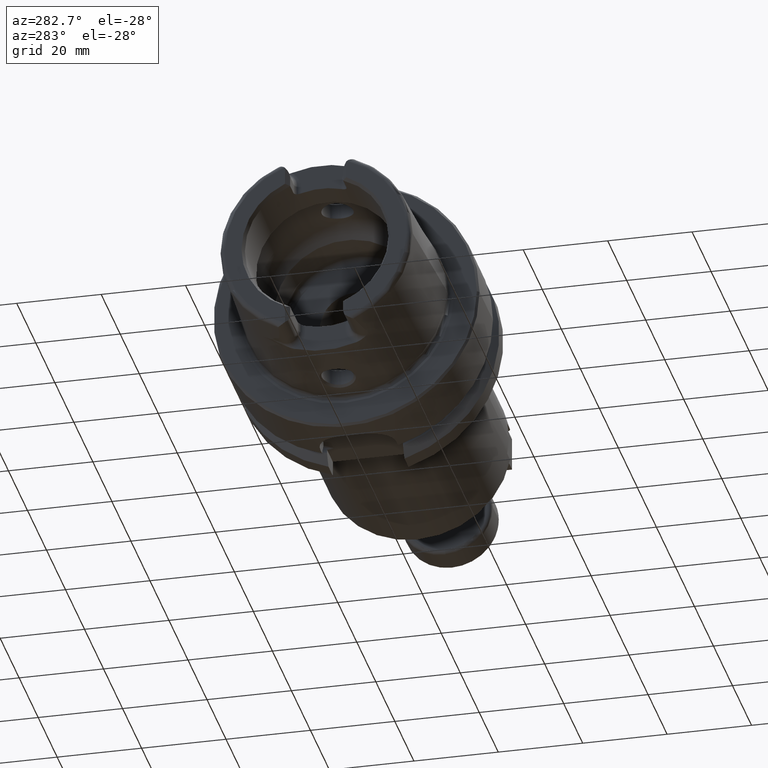
[diagram: clean part render]
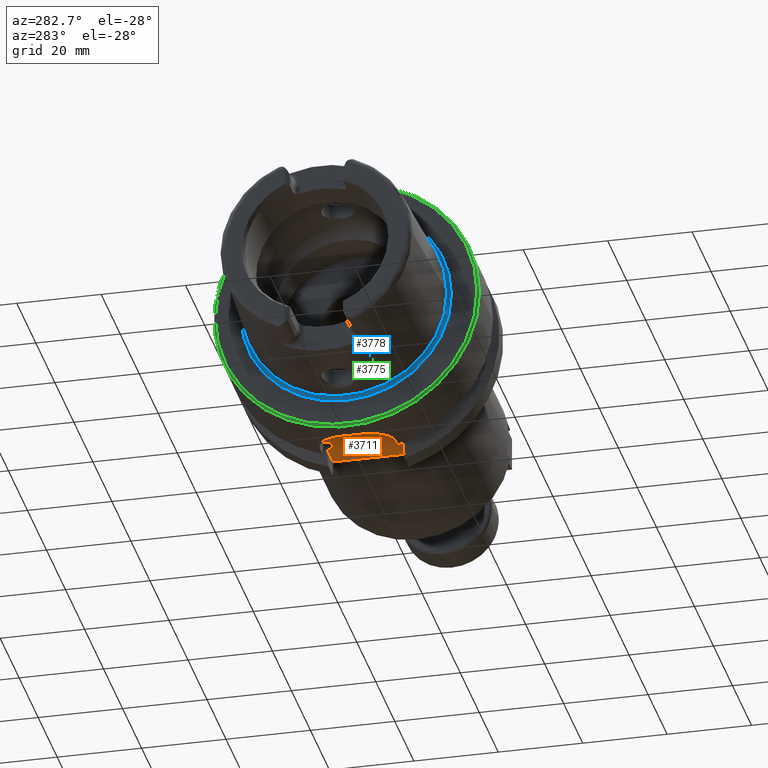
[diagram: same view with three faces highlighted in distinct colors, each labeled with its STEP entity id]
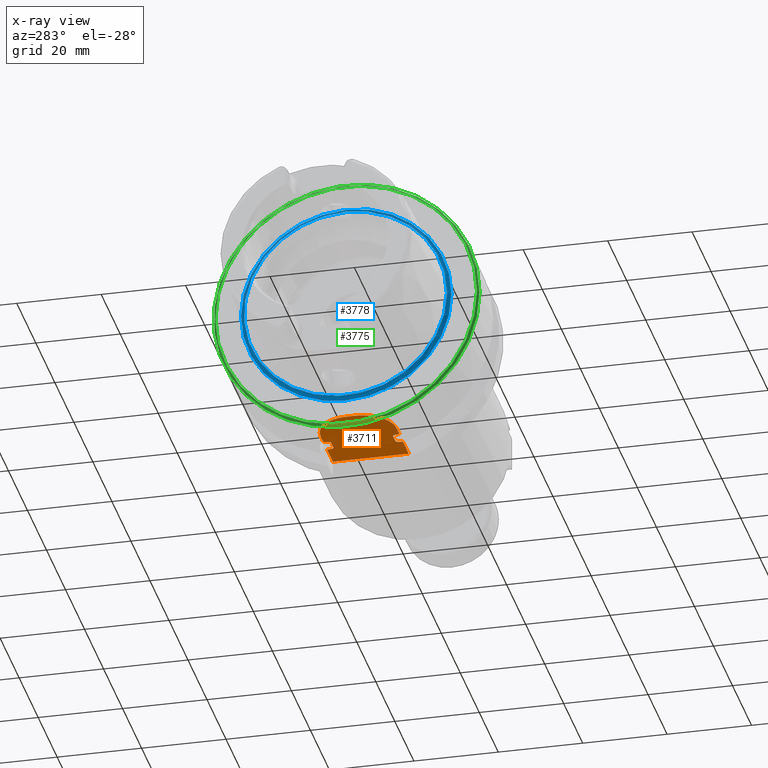
[diagram: x-ray of the same camera — body ghosted, the three highlighted faces saturated]
A machine part, auxiliary view with three faces highlighted in distinct colors.
The next image is the same camera in x-ray (body ghosted, the three faces saturated) — at least one of them is partly hidden behind the body in this view.
Their STEP definitions:

[orange] entity #3711 — the highlighted planar face has unit normal (0, 0, 1).
#659=B_SPLINE_CURVE_WITH_KNOTS('',3,(#6809,#6810,#6811,#6812,#6813,#6814,
#6815,#6816,#6817,#6818),.UNSPECIFIED.,.F.,.F.,(4,2,2,2,4),(0.15835931245442,
0.289228035148658,0.316691561230897,0.323545183976989,0.328785692776271),
 .UNSPECIFIED.);
#660=B_SPLINE_CURVE_WITH_KNOTS('',3,(#6830,#6831,#6832,#6833,#6834,#6835,
#6836,#6837,#6838,#6839),.UNSPECIFIED.,.F.,.F.,(4,2,2,2,4),(0.328785692776271,
0.334026201575553,0.340879824321645,0.368343350403884,0.499212073098123),
 .UNSPECIFIED.);
#661=B_SPLINE_CURVE_WITH_KNOTS('',3,(#6842,#6843,#6844,#6845,#6846,#6847,
#6848,#6849,#6850,#6851),.UNSPECIFIED.,.F.,.F.,(4,2,2,2,4),(0.15835931245442,
0.289228035148658,0.316691561230897,0.323545183976988,0.32878569277627),
 .UNSPECIFIED.);
#662=B_SPLINE_CURVE_WITH_KNOTS('',3,(#6853,#6854,#6855,#6856,#6857,#6858,
#6859,#6860,#6861,#6862),.UNSPECIFIED.,.F.,.F.,(4,2,2,2,4),(0.32878569277627,
0.334026201575552,0.340879824321644,0.368343350403882,0.49921207309812),
 .UNSPECIFIED.);
#732=PLANE('',#4169);
#908=FACE_OUTER_BOUND('',#1109,.T.);
#1109=EDGE_LOOP('',(#3048,#3049,#3050,#3051,#3052,#3053,#3054,#3055,#3056,
#3057,#3058,#3059,#3060,#3061));
#1272=LINE('',#5836,#1466);
#1327=LINE('',#6763,#1521);
#1329=LINE('',#6793,#1523);
#1332=LINE('',#6820,#1526);
#1333=LINE('',#6824,#1527);
#1334=LINE('',#6828,#1528);
#1335=LINE('',#6841,#1529);
#1336=LINE('',#6863,#1530);
#1466=VECTOR('',#4657,10.);
#1521=VECTOR('',#4910,10.);
#1523=VECTOR('',#4914,10.);
#1526=VECTOR('',#4919,10.);
#1527=VECTOR('',#4922,10.);
#1528=VECTOR('',#4925,10.);
#1529=VECTOR('',#4926,10.);
#1530=VECTOR('',#4927,10.);
#1714=CIRCLE('',#4170,8.);
#1715=CIRCLE('',#4171,8.);
#1910=VERTEX_POINT('',#5833);
#1911=VERTEX_POINT('',#5835);
#2026=VERTEX_POINT('',#6758);
#2030=VERTEX_POINT('',#6792);
#2034=VERTEX_POINT('',#6807);
#2035=VERTEX_POINT('',#6808);
#2036=VERTEX_POINT('',#6819);
#2037=VERTEX_POINT('',#6821);
#2038=VERTEX_POINT('',#6823);
#2039=VERTEX_POINT('',#6825);
#2040=VERTEX_POINT('',#6827);
#2041=VERTEX_POINT('',#6829);
#2042=VERTEX_POINT('',#6840);
#2043=VERTEX_POINT('',#6852);
#2248=EDGE_CURVE('',#1910,#1911,#1272,.T.);
#2404=EDGE_CURVE('',#2026,#1910,#1327,.T.);
#2409=EDGE_CURVE('',#1911,#2030,#1329,.T.);
#2414=EDGE_CURVE('',#2034,#2035,#659,.T.);
#2415=EDGE_CURVE('',#2036,#2034,#1332,.T.);
#2416=EDGE_CURVE('',#2037,#2036,#1714,.T.);
#2417=EDGE_CURVE('',#2038,#2037,#1333,.T.);
#2418=EDGE_CURVE('',#2039,#2038,#1715,.T.);
#2419=EDGE_CURVE('',#2040,#2039,#1334,.T.);
#2420=EDGE_CURVE('',#2041,#2040,#660,.T.);
#2421=EDGE_CURVE('',#2042,#2041,#1335,.T.);
#2422=EDGE_CURVE('',#2030,#2042,#661,.T.);
#2423=EDGE_CURVE('',#2043,#2026,#662,.T.);
#2424=EDGE_CURVE('',#2035,#2043,#1336,.T.);
#3048=ORIENTED_EDGE('',*,*,#2414,.F.);
#3049=ORIENTED_EDGE('',*,*,#2415,.F.);
#3050=ORIENTED_EDGE('',*,*,#2416,.F.);
#3051=ORIENTED_EDGE('',*,*,#2417,.F.);
#3052=ORIENTED_EDGE('',*,*,#2418,.F.);
#3053=ORIENTED_EDGE('',*,*,#2419,.F.);
#3054=ORIENTED_EDGE('',*,*,#2420,.F.);
#3055=ORIENTED_EDGE('',*,*,#2421,.F.);
#3056=ORIENTED_EDGE('',*,*,#2422,.F.);
#3057=ORIENTED_EDGE('',*,*,#2409,.F.);
#3058=ORIENTED_EDGE('',*,*,#2248,.F.);
#3059=ORIENTED_EDGE('',*,*,#2404,.F.);
#3060=ORIENTED_EDGE('',*,*,#2423,.F.);
#3061=ORIENTED_EDGE('',*,*,#2424,.F.);
#3711=ADVANCED_FACE('',(#908),#732,.F.);
#4169=AXIS2_PLACEMENT_3D('',#6806,#4917,#4918);
#4170=AXIS2_PLACEMENT_3D('',#6822,#4920,#4921);
#4171=AXIS2_PLACEMENT_3D('',#6826,#4923,#4924);
#4657=DIRECTION('',(0.,1.,0.));
#4910=DIRECTION('',(1.,-2.56205313375036E-16,0.));
#4914=DIRECTION('',(-1.,2.56205313375036E-16,0.));
#4917=DIRECTION('center_axis',(0.,0.,1.));
#4918=DIRECTION('ref_axis',(1.,0.,0.));
#4919=DIRECTION('',(1.,-2.56205313375036E-16,0.));
#4920=DIRECTION('center_axis',(0.,0.,1.));
#4921=DIRECTION('ref_axis',(-1.,-2.42861286636753E-16,0.));
#4922=DIRECTION('',(0.,-1.,0.));
#4923=DIRECTION('center_axis',(0.,0.,1.));
#4924=DIRECTION('ref_axis',(0.,1.,0.));
#4925=DIRECTION('',(-1.,2.56205313375036E-16,0.));
#4926=DIRECTION('',(-1.,0.,0.));
#4927=DIRECTION('',(1.,0.,0.));
#5833=CARTESIAN_POINT('',(26.,-9.,-26.5));
#5835=CARTESIAN_POINT('',(26.,9.,-26.5));
#5836=CARTESIAN_POINT('',(26.,1.94289029309402E-15,-26.5));
#6758=CARTESIAN_POINT('',(19.8748205133158,-9.,-26.5));
#6763=CARTESIAN_POINT('',(13.,-9.,-26.5));
#6792=CARTESIAN_POINT('',(19.8748205133158,9.,-26.5));
#6793=CARTESIAN_POINT('',(26.,9.,-26.5));
#6806=CARTESIAN_POINT('Origin',(15.5,3.88578058618805E-15,-26.5));
#6807=CARTESIAN_POINT('',(16.1251794866842,-9.,-26.5));
#6808=CARTESIAN_POINT('',(16.625,-7.34846922834952,-26.5));
#6809=CARTESIAN_POINT('Ctrl Pts',(16.1251794866842,-9.,-26.5));
#6810=CARTESIAN_POINT('Ctrl Pts',(16.12898241235,-8.55877260788573,-26.5));
#6811=CARTESIAN_POINT('Ctrl Pts',(16.1819334034884,-8.04136347440828,-26.5));
#6812=CARTESIAN_POINT('Ctrl Pts',(16.3906456489289,-7.5566112023157,-26.5));
#6813=CARTESIAN_POINT('Ctrl Pts',(16.4411490019356,-7.4590543697872,-26.5));
#6814=CARTESIAN_POINT('Ctrl Pts',(16.5270295504762,-7.38349170057081,-26.5));
#6815=CARTESIAN_POINT('Ctrl Pts',(16.5496994821687,-7.36807649661538,-26.5));
#6816=CARTESIAN_POINT('Ctrl Pts',(16.587038394856,-7.35287762173868,-26.5));
#6817=CARTESIAN_POINT('Ctrl Pts',(16.6075316373357,-7.34846922834952,-26.5));
#6818=CARTESIAN_POINT('Ctrl Pts',(16.625,-7.34846922834952,-26.5));
#6819=CARTESIAN_POINT('',(13.,-9.,-26.5));
#6820=CARTESIAN_POINT('',(13.,-9.,-26.5));
#6821=CARTESIAN_POINT('',(5.,-0.999999999999999,-26.5));
#6822=CARTESIAN_POINT('Origin',(13.,-0.999999999999997,-26.5));
#6823=CARTESIAN_POINT('',(5.,1.,-26.5));
#6824=CARTESIAN_POINT('',(5.,1.,-26.5));
#6825=CARTESIAN_POINT('',(13.,9.00000000000001,-26.5));
#6826=CARTESIAN_POINT('Origin',(13.,1.,-26.5));
#6827=CARTESIAN_POINT('',(16.1251794866842,9.,-26.5));
#6828=CARTESIAN_POINT('',(26.,9.,-26.5));
#6829=CARTESIAN_POINT('',(16.625,7.34846922834952,-26.5));
#6830=CARTESIAN_POINT('Ctrl Pts',(16.625,7.34846922834952,-26.5));
#6831=CARTESIAN_POINT('Ctrl Pts',(16.6075316373357,7.34846922834952,-26.5));
#6832=CARTESIAN_POINT('Ctrl Pts',(16.587038394856,7.35287762173868,-26.5));
#6833=CARTESIAN_POINT('Ctrl Pts',(16.5496994821687,7.36807649661538,-26.5));
#6834=CARTESIAN_POINT('Ctrl Pts',(16.5270295504762,7.38349170057081,-26.5));
#6835=CARTESIAN_POINT('Ctrl Pts',(16.4411490019356,7.4590543697872,-26.5));
#6836=CARTESIAN_POINT('Ctrl Pts',(16.3906456489289,7.5566112023157,-26.5));
#6837=CARTESIAN_POINT('Ctrl Pts',(16.1819334034884,8.04136347440828,-26.5));
#6838=CARTESIAN_POINT('Ctrl Pts',(16.12898241235,8.55877260788573,-26.5));
#6839=CARTESIAN_POINT('Ctrl Pts',(16.1251794866842,9.,-26.5));
#6840=CARTESIAN_POINT('',(19.375,7.34846922834952,-26.5));
#6841=CARTESIAN_POINT('',(18.,7.34846922834952,-26.5));
#6842=CARTESIAN_POINT('Ctrl Pts',(19.8748205133158,9.,-26.5));
#6843=CARTESIAN_POINT('Ctrl Pts',(19.87101758765,8.55877260788573,-26.5));
#6844=CARTESIAN_POINT('Ctrl Pts',(19.8180665965116,8.04136347440828,-26.5));
#6845=CARTESIAN_POINT('Ctrl Pts',(19.6093543510711,7.5566112023157,-26.5));
#6846=CARTESIAN_POINT('Ctrl Pts',(19.5588509980644,7.45905436978719,-26.5));
#6847=CARTESIAN_POINT('Ctrl Pts',(19.4729704495238,7.38349170057082,-26.5));
#6848=CARTESIAN_POINT('Ctrl Pts',(19.4503005178313,7.3680764966154,-26.5));
#6849=CARTESIAN_POINT('Ctrl Pts',(19.412961605144,7.35287762173869,-26.5));
#6850=CARTESIAN_POINT('Ctrl Pts',(19.3924683626643,7.34846922834952,-26.5));
#6851=CARTESIAN_POINT('Ctrl Pts',(19.375,7.34846922834952,-26.5));
#6852=CARTESIAN_POINT('',(19.375,-7.34846922834952,-26.5));
#6853=CARTESIAN_POINT('Ctrl Pts',(19.375,-7.34846922834952,-26.5));
#6854=CARTESIAN_POINT('Ctrl Pts',(19.3924683626643,-7.34846922834952,-26.5));
#6855=CARTESIAN_POINT('Ctrl Pts',(19.412961605144,-7.35287762173869,-26.5));
#6856=CARTESIAN_POINT('Ctrl Pts',(19.4503005178313,-7.3680764966154,-26.5));
#6857=CARTESIAN_POINT('Ctrl Pts',(19.4729704495238,-7.38349170057082,-26.5));
#6858=CARTESIAN_POINT('Ctrl Pts',(19.5588509980644,-7.45905436978719,-26.5));
#6859=CARTESIAN_POINT('Ctrl Pts',(19.6093543510711,-7.5566112023157,-26.5));
#6860=CARTESIAN_POINT('Ctrl Pts',(19.8180665965116,-8.04136347440828,-26.5));
#6861=CARTESIAN_POINT('Ctrl Pts',(19.87101758765,-8.55877260788573,-26.5));
#6862=CARTESIAN_POINT('Ctrl Pts',(19.8748205133158,-9.,-26.5));
#6863=CARTESIAN_POINT('',(18.,-7.34846922834952,-26.5));

[blue] entity #3778 — the highlighted toroidal blend (fillet) surface has major radius 24.8204 mm and minor (blend) radius 0.8 mm.
#613=TOROIDAL_SURFACE('',#4299,24.8204308617234,0.8);
#975=FACE_OUTER_BOUND('',#1181,.T.);
#1181=EDGE_LOOP('',(#3394,#3395,#3396,#3397,#3398,#3399));
#1770=CIRCLE('',#4288,24.9317693424915);
#1771=CIRCLE('',#4289,24.9317693424915);
#1775=CIRCLE('',#4297,24.0204308617234);
#1776=CIRCLE('',#4298,24.0204308617234);
#1777=CIRCLE('',#4300,0.8);
#2094=VERTEX_POINT('',#7234);
#2095=VERTEX_POINT('',#7235);
#2099=VERTEX_POINT('',#7251);
#2100=VERTEX_POINT('',#7252);
#2533=EDGE_CURVE('',#2094,#2095,#1770,.T.);
#2534=EDGE_CURVE('',#2095,#2094,#1771,.T.);
#2541=EDGE_CURVE('',#2099,#2100,#1775,.T.);
#2543=EDGE_CURVE('',#2100,#2099,#1776,.T.);
#2544=EDGE_CURVE('',#2100,#2095,#1777,.T.);
#3394=ORIENTED_EDGE('',*,*,#2541,.T.);
#3395=ORIENTED_EDGE('',*,*,#2544,.T.);
#3396=ORIENTED_EDGE('',*,*,#2533,.F.);
#3397=ORIENTED_EDGE('',*,*,#2534,.F.);
#3398=ORIENTED_EDGE('',*,*,#2544,.F.);
#3399=ORIENTED_EDGE('',*,*,#2543,.T.);
#3778=ADVANCED_FACE('',(#975),#613,.F.);
#4288=AXIS2_PLACEMENT_3D('',#7236,#5192,#5193);
#4289=AXIS2_PLACEMENT_3D('',#7237,#5194,#5195);
#4297=AXIS2_PLACEMENT_3D('',#7253,#5213,#5214);
#4298=AXIS2_PLACEMENT_3D('',#7255,#5216,#5217);
#4299=AXIS2_PLACEMENT_3D('',#7256,#5218,#5219);
#4300=AXIS2_PLACEMENT_3D('',#7257,#5220,#5221);
#5192=DIRECTION('center_axis',(1.,0.,0.));
#5193=DIRECTION('ref_axis',(0.,0.,-1.));
#5194=DIRECTION('center_axis',(1.,0.,0.));
#5195=DIRECTION('ref_axis',(0.,0.,-1.));
#5213=DIRECTION('center_axis',(1.,0.,0.));
#5214=DIRECTION('ref_axis',(0.,0.,-1.));
#5216=DIRECTION('center_axis',(1.,0.,0.));
#5217=DIRECTION('ref_axis',(0.,0.,-1.));
#5218=DIRECTION('center_axis',(1.,0.,0.));
#5219=DIRECTION('ref_axis',(0.,0.,-1.));
#5220=DIRECTION('center_axis',(0.,-1.,-1.22464679914735E-16));
#5221=DIRECTION('ref_axis',(0.,-1.22464679914735E-16,1.));
#7234=CARTESIAN_POINT('',(0.092214454993257,-24.9317693424915,-3.05326115223623E-15));
#7235=CARTESIAN_POINT('',(0.0922144549932569,-3.05326115223623E-15,24.9317693424915));
#7236=CARTESIAN_POINT('Origin',(0.0922144549932569,0.,0.));
#7237=CARTESIAN_POINT('Origin',(0.0922144549932569,0.,0.));
#7251=CARTESIAN_POINT('',(-0.7,-24.0204308617234,-2.94165437689499E-15));
#7252=CARTESIAN_POINT('',(-0.7,-2.94165437689499E-15,24.0204308617234));
#7253=CARTESIAN_POINT('Origin',(-0.7,0.,0.));
#7255=CARTESIAN_POINT('Origin',(-0.7,0.,0.));
#7256=CARTESIAN_POINT('Origin',(-0.7,0.,0.));
#7257=CARTESIAN_POINT('Origin',(-0.7,-3.03962612082678E-15,24.8204308617234));

[green] entity #3775 — the highlighted conical surface has half-angle 45 deg.
#972=FACE_OUTER_BOUND('',#1178,.T.);
#1178=EDGE_LOOP('',(#3381,#3382,#3383,#3384));
#1370=LINE('',#7245,#1564);
#1564=VECTOR('',#5205,31.25);
#1732=CIRCLE('',#4215,31.5);
#1773=CIRCLE('',#4292,31.);
#2071=VERTEX_POINT('',#7086);
#2097=VERTEX_POINT('',#7242);
#2480=EDGE_CURVE('',#2071,#2071,#1732,.T.);
#2537=EDGE_CURVE('',#2097,#2097,#1773,.T.);
#2538=EDGE_CURVE('',#2071,#2097,#1370,.T.);
#3381=ORIENTED_EDGE('',*,*,#2480,.F.);
#3382=ORIENTED_EDGE('',*,*,#2538,.T.);
#3383=ORIENTED_EDGE('',*,*,#2537,.T.);
#3384=ORIENTED_EDGE('',*,*,#2538,.F.);
#3631=CONICAL_SURFACE('',#4293,31.25,0.785398163397447);
#3775=ADVANCED_FACE('',(#972),#3631,.T.);
#4215=AXIS2_PLACEMENT_3D('',#7088,#5035,#5036);
#4292=AXIS2_PLACEMENT_3D('',#7243,#5201,#5202);
#4293=AXIS2_PLACEMENT_3D('',#7244,#5203,#5204);
#5035=DIRECTION('center_axis',(1.,0.,0.));
#5036=DIRECTION('ref_axis',(0.,0.,-1.));
#5201=DIRECTION('center_axis',(1.,0.,0.));
#5202=DIRECTION('ref_axis',(0.,0.,-1.));
#5203=DIRECTION('center_axis',(1.,0.,0.));
#5204=DIRECTION('ref_axis',(0.,1.,0.));
#5205=DIRECTION('',(-0.707106781186549,0.707106781186546,8.65956056235492E-17));
#7086=CARTESIAN_POINT('',(0.5,-31.5,-3.85763741731416E-15));
#7088=CARTESIAN_POINT('Origin',(0.5,0.,0.));
#7242=CARTESIAN_POINT('',(-5.89805981832114E-16,-31.,-3.7964050773568E-15));
#7243=CARTESIAN_POINT('Origin',(0.,0.,0.));
#7244=CARTESIAN_POINT('Origin',(0.25,0.,0.));
#7245=CARTESIAN_POINT('',(0.25,-31.25,-3.82702124733548E-15));